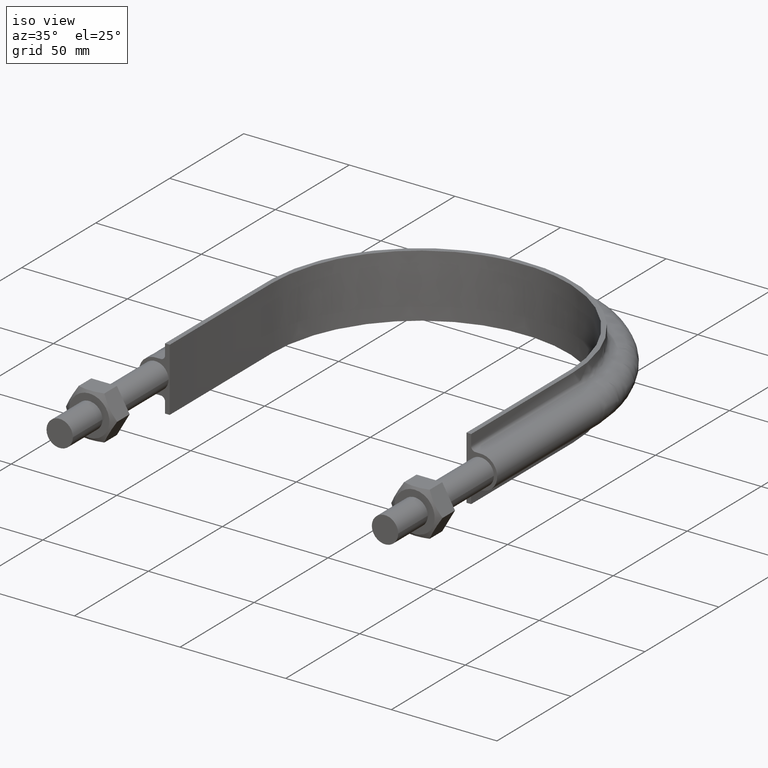
[diagram: clean part render]
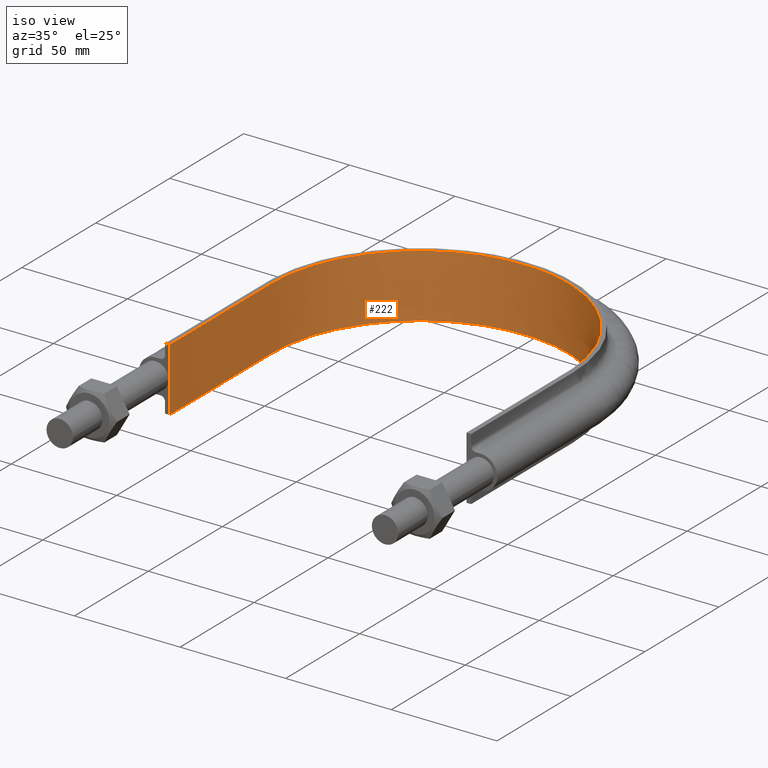
[diagram: same view with one face highlighted and labeled with its STEP entity id]
A machine part, iso view. The second image highlights one B-rep face of the part: STEP entity #222.
In plain terms, the highlighted face is a SurfaceOfExtrusion surface.
Its self-contained STEP definition (entity closure, byte-faithful):
#222 = ADVANCED_FACE( '', ( #266 ), #267, .T. );
#266 = FACE_OUTER_BOUND( '', #362, .T. );
#267 = SURFACE_OF_LINEAR_EXTRUSION( '', #363, #364 );
#362 = EDGE_LOOP( '', ( #1319, #1320, #1321, #1322 ) );
#363 = B_SPLINE_CURVE_WITH_KNOTS( '', 3, ( #1323, #1324, #1325, #1326, #1327, #1328, #1329, #1330, #1331, #1332, #1333, #1334, #1335, #1336, #1337, #1338 ), .UNSPECIFIED., .F., .F., ( 4, 3, 1, 1, 1, 1, 1, 1, 3, 4 ), ( -9.00000000000000, -8.00000000000000, -7.00000000000000, -6.00000000000000, -5.00000000000000, -4.00000000000000, -3.00000000000000, -2.00000000000000, -1.00000000000000, 0.000000000000000 ), .UNSPECIFIED. );
#364 = VECTOR( '', #1339, 1000.00000000000 );
#1319 = ORIENTED_EDGE( '', *, *, #1559, .F. );
#1320 = ORIENTED_EDGE( '', *, *, #1548, .F. );
#1321 = ORIENTED_EDGE( '', *, *, #1552, .T. );
#1322 = ORIENTED_EDGE( '', *, *, #1556, .T. );
#1323 = CARTESIAN_POINT( '', ( -70.2500000000000, 64.7100000000000, -237.081057040700 ) );
#1324 = CARTESIAN_POINT( '', ( -70.2500000000000, 87.7266666666667, -237.081057040700 ) );
#1325 = CARTESIAN_POINT( '', ( -70.2500000000000, 110.743333333333, -237.081057040700 ) );
#1326 = CARTESIAN_POINT( '', ( -70.2500000000000, 133.760000000000, -237.081057040700 ) );
#1327 = CARTESIAN_POINT( '', ( -70.2500000000000, 144.249418134732, -237.081057040700 ) );
#1328 = CARTESIAN_POINT( '', ( -65.4537147955432, 165.288971927909, -237.081057040700 ) );
#1329 = CARTESIAN_POINT( '', ( -45.2953760364684, 190.556467088273, -237.081057040700 ) );
#1330 = CARTESIAN_POINT( '', ( -16.1657325420394, 204.587129579273, -237.081057040700 ) );
#1331 = CARTESIAN_POINT( '', ( 16.1657325420395, 204.587129579273, -237.081057040700 ) );
#1332 = CARTESIAN_POINT( '', ( 45.2953760364684, 190.556467088273, -237.081057040700 ) );
#1333 = CARTESIAN_POINT( '', ( 65.4537147955432, 165.288971927909, -237.081057040700 ) );
#1334 = CARTESIAN_POINT( '', ( 70.2500000000000, 144.249418134732, -237.081057040700 ) );
#1335 = CARTESIAN_POINT( '', ( 70.2500000000000, 133.760000000000, -237.081057040700 ) );
#1336 = CARTESIAN_POINT( '', ( 70.2500000000000, 110.743333333333, -237.081057040700 ) );
#1337 = CARTESIAN_POINT( '', ( 70.2500000000000, 87.7266666666667, -237.081057040700 ) );
#1338 = CARTESIAN_POINT( '', ( 70.2500000000000, 64.7100000000000, -237.081057040700 ) );
#1339 = DIRECTION( '', ( 0.000000000000000, 0.000000000000000, 1.00000000000000 ) );
#1548 = EDGE_CURVE( '', #1615, #1616, #1617, .T. );
#1552 = EDGE_CURVE( '', #1615, #1623, #1624, .T. );
#1556 = EDGE_CURVE( '', #1623, #1630, #1631, .T. );
#1559 = EDGE_CURVE( '', #1616, #1630, #1635, .T. );
#1615 = VERTEX_POINT( '', #1741 );
#1616 = VERTEX_POINT( '', #1742 );
#1617 = LINE( '', #1743, #1744 );
#1623 = VERTEX_POINT( '', #1782 );
#1624 = B_SPLINE_CURVE_WITH_KNOTS( '', 3, ( #1783, #1784, #1785, #1786, #1787, #1788, #1789, #1790, #1791, #1792, #1793, #1794, #1795, #1796, #1797, #1798 ), .UNSPECIFIED., .F., .F., ( 4, 3, 1, 1, 1, 1, 1, 1, 3, 4 ), ( -9.00000000000000, -8.00000000000000, -7.00000000000000, -6.00000000000000, -5.00000000000000, -4.00000000000000, -3.00000000000000, -2.00000000000000, -1.00000000000000, 0.000000000000000 ), .UNSPECIFIED. );
#1630 = VERTEX_POINT( '', #1830 );
#1631 = LINE( '', #1831, #1832 );
#1635 = B_SPLINE_CURVE_WITH_KNOTS( '', 3, ( #1867, #1868, #1869, #1870, #1871, #1872, #1873, #1874, #1875, #1876, #1877, #1878, #1879, #1880, #1881, #1882 ), .UNSPECIFIED., .F., .F., ( 4, 3, 1, 1, 1, 1, 1, 1, 3, 4 ), ( -9.00000000000000, -8.00000000000000, -7.00000000000000, -6.00000000000000, -5.00000000000000, -4.00000000000000, -3.00000000000000, -2.00000000000000, -1.00000000000000, 0.000000000000000 ), .UNSPECIFIED. );
#1741 = CARTESIAN_POINT( '', ( -70.2500000000000, 64.7100000000000, -15.0000000000000 ) );
#1742 = CARTESIAN_POINT( '', ( -70.2500000000000, 64.7100000000000, 15.0000000000000 ) );
#1743 = CARTESIAN_POINT( '', ( -70.2500000000000, 64.7100000000000, -237.081057040700 ) );
#1744 = VECTOR( '', #2167, 1000.00000000000 );
#1782 = CARTESIAN_POINT( '', ( 70.2500000000000, 64.7100000000000, -15.0000000000000 ) );
#1783 = CARTESIAN_POINT( '', ( -70.2500000000000, 64.7100000000000, -15.0000000000000 ) );
#1784 = CARTESIAN_POINT( '', ( -70.2500000000000, 87.7266666666667, -15.0000000000000 ) );
#1785 = CARTESIAN_POINT( '', ( -70.2500000000000, 110.743333333333, -15.0000000000000 ) );
#1786 = CARTESIAN_POINT( '', ( -70.2500000000000, 133.760000000000, -15.0000000000000 ) );
#1787 = CARTESIAN_POINT( '', ( -70.2500000000000, 144.249418134732, -15.0000000000000 ) );
#1788 = CARTESIAN_POINT( '', ( -65.4537147955432, 165.288971927909, -15.0000000000000 ) );
#1789 = CARTESIAN_POINT( '', ( -45.2953760364684, 190.556467088273, -15.0000000000000 ) );
#1790 = CARTESIAN_POINT( '', ( -16.1657325420394, 204.587129579273, -15.0000000000000 ) );
#1791 = CARTESIAN_POINT( '', ( 16.1657325420395, 204.587129579273, -15.0000000000000 ) );
#1792 = CARTESIAN_POINT( '', ( 45.2953760364684, 190.556467088273, -15.0000000000000 ) );
#1793 = CARTESIAN_POINT( '', ( 65.4537147955432, 165.288971927909, -15.0000000000000 ) );
#1794 = CARTESIAN_POINT( '', ( 70.2500000000000, 144.249418134732, -15.0000000000000 ) );
#1795 = CARTESIAN_POINT( '', ( 70.2500000000000, 133.760000000000, -15.0000000000000 ) );
#1796 = CARTESIAN_POINT( '', ( 70.2500000000000, 110.743333333333, -15.0000000000000 ) );
#1797 = CARTESIAN_POINT( '', ( 70.2500000000000, 87.7266666666667, -15.0000000000000 ) );
#1798 = CARTESIAN_POINT( '', ( 70.2500000000000, 64.7100000000000, -15.0000000000000 ) );
#1830 = CARTESIAN_POINT( '', ( 70.2500000000000, 64.7100000000000, 15.0000000000000 ) );
#1831 = CARTESIAN_POINT( '', ( 70.2500000000000, 64.7100000000000, -237.081057040700 ) );
#1832 = VECTOR( '', #2171, 1000.00000000000 );
#1867 = CARTESIAN_POINT( '', ( -70.2500000000000, 64.7100000000000, 15.0000000000000 ) );
#1868 = CARTESIAN_POINT( '', ( -70.2500000000000, 87.7266666666667, 15.0000000000000 ) );
#1869 = CARTESIAN_POINT( '', ( -70.2500000000000, 110.743333333333, 15.0000000000000 ) );
#1870 = CARTESIAN_POINT( '', ( -70.2500000000000, 133.760000000000, 15.0000000000000 ) );
#1871 = CARTESIAN_POINT( '', ( -70.2500000000000, 144.249418134732, 15.0000000000000 ) );
#1872 = CARTESIAN_POINT( '', ( -65.4537147955432, 165.288971927909, 15.0000000000000 ) );
#1873 = CARTESIAN_POINT( '', ( -45.2953760364684, 190.556467088273, 15.0000000000000 ) );
#1874 = CARTESIAN_POINT( '', ( -16.1657325420394, 204.587129579273, 15.0000000000000 ) );
#1875 = CARTESIAN_POINT( '', ( 16.1657325420395, 204.587129579273, 15.0000000000000 ) );
#1876 = CARTESIAN_POINT( '', ( 45.2953760364684, 190.556467088273, 15.0000000000000 ) );
#1877 = CARTESIAN_POINT( '', ( 65.4537147955432, 165.288971927909, 15.0000000000000 ) );
#1878 = CARTESIAN_POINT( '', ( 70.2500000000000, 144.249418134732, 15.0000000000000 ) );
#1879 = CARTESIAN_POINT( '', ( 70.2500000000000, 133.760000000000, 15.0000000000000 ) );
#1880 = CARTESIAN_POINT( '', ( 70.2500000000000, 110.743333333333, 15.0000000000000 ) );
#1881 = CARTESIAN_POINT( '', ( 70.2500000000000, 87.7266666666667, 15.0000000000000 ) );
#1882 = CARTESIAN_POINT( '', ( 70.2500000000000, 64.7100000000000, 15.0000000000000 ) );
#2167 = DIRECTION( '', ( 0.000000000000000, 0.000000000000000, 1.00000000000000 ) );
#2171 = DIRECTION( '', ( 0.000000000000000, 0.000000000000000, 1.00000000000000 ) );